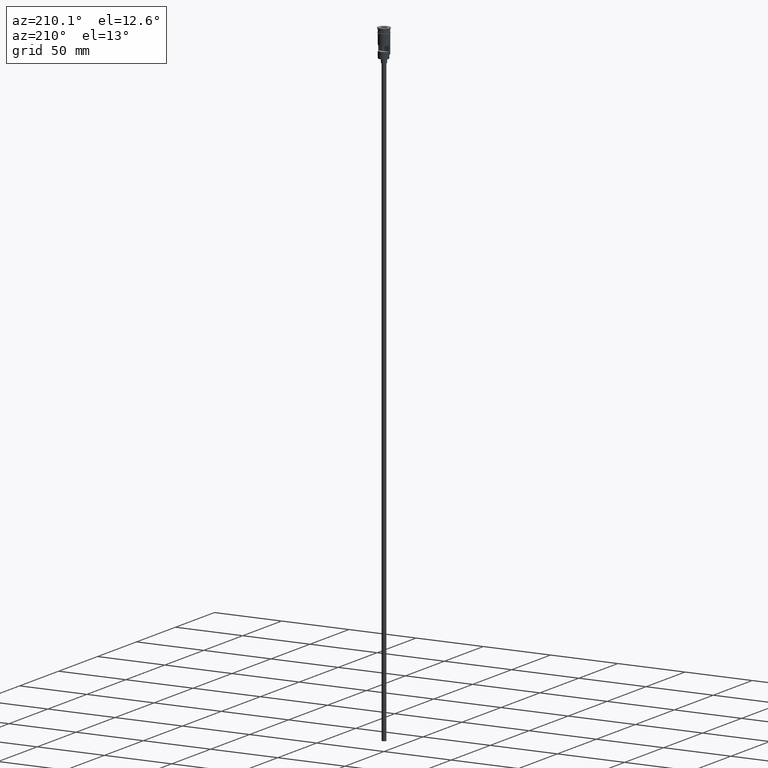
[diagram: clean part render]
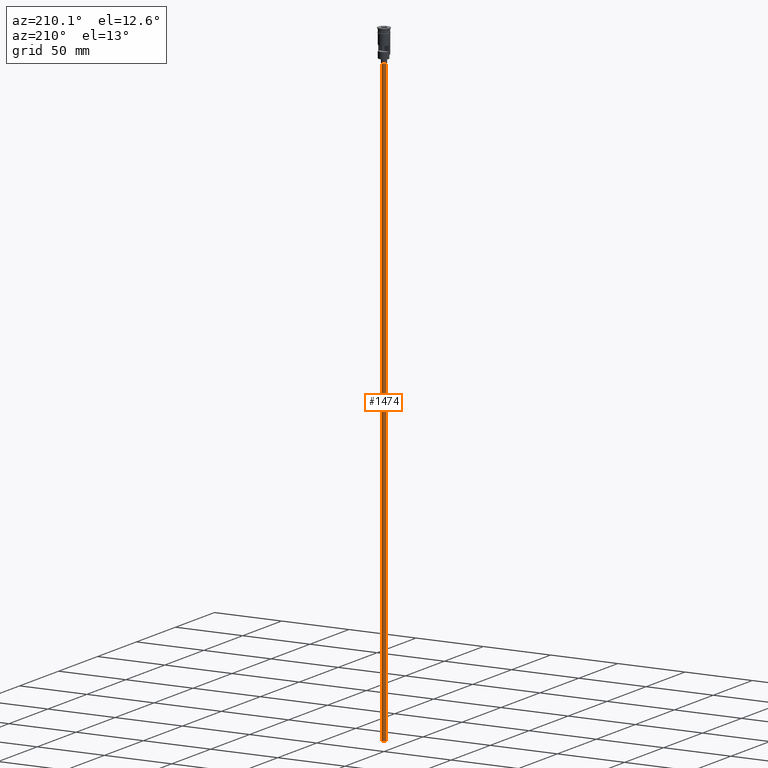
[diagram: same view with one face highlighted and labeled with its STEP entity id]
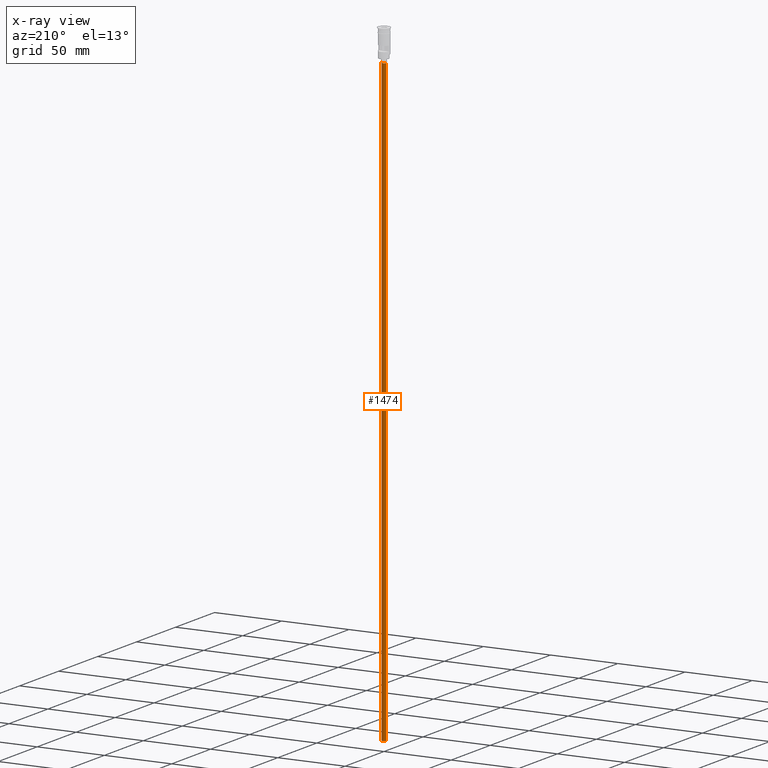
[diagram: x-ray of the same camera — body ghosted, the highlighted face saturated]
A machine part, auxiliary view. The second image highlights one B-rep face of the part: STEP entity #1474.
The next image is the same camera in x-ray: the body ghosted, the highlighted face saturated — about 0% of this face is hidden behind the body in this view.
In plain terms, the highlighted cylindrical surface (edge-blend (fillet) strip) has radius 1.5 mm, axis along (-0, -0, 1).
Its self-contained STEP definition (entity closure, byte-faithful):
#62 = EDGE_CURVE ( 'NONE', #114, #1511, #1437, .T. ) ;
#71 = VECTOR ( 'NONE', #627, 1000.000000000000000 ) ;
#114 = VERTEX_POINT ( 'NONE', #1165 ) ;
#130 = CARTESIAN_POINT ( 'NONE',  ( -1.500000000000000222, 1.836970198721030181E-16, -470.5000000000000568 ) ) ;
#135 = DIRECTION ( 'NONE',  ( -1.000000000000000000, 0.000000000000000000, 0.000000000000000000 ) ) ;
#212 = EDGE_CURVE ( 'NONE', #673, #392, #476, .T. ) ;
#227 = DIRECTION ( 'NONE',  ( 1.000000000000000000, 0.000000000000000000, 0.000000000000000000 ) ) ;
#368 = EDGE_CURVE ( 'NONE', #673, #114, #785, .T. ) ;
#392 = VERTEX_POINT ( 'NONE', #1518 ) ;
#476 = CIRCLE ( 'NONE', #1515, 1.500000000000000222 ) ;
#494 = CARTESIAN_POINT ( 'NONE',  ( 0.000000000000000000, 0.000000000000000000, -470.5000000000000568 ) ) ;
#596 = CYLINDRICAL_SURFACE ( 'NONE', #1491, 1.500000000000000222 ) ;
#618 = CARTESIAN_POINT ( 'NONE',  ( 0.000000000000000000, 0.000000000000000000, -23.49999999999999645 ) ) ;
#621 = CARTESIAN_POINT ( 'NONE',  ( 1.500000000000000222, 0.000000000000000000, -23.49999999999999645 ) ) ;
#627 = DIRECTION ( 'NONE',  ( -0.000000000000000000, -0.000000000000000000, 1.000000000000000000 ) ) ;
#673 = VERTEX_POINT ( 'NONE', #1322 ) ;
#729 = FACE_OUTER_BOUND ( 'NONE', #1145, .T. ) ;
#785 = LINE ( 'NONE', #130, #71 ) ;
#831 = DIRECTION ( 'NONE',  ( -0.000000000000000000, -0.000000000000000000, 1.000000000000000000 ) ) ;
#835 = ORIENTED_EDGE ( 'NONE', *, *, #368, .T. ) ;
#843 = LINE ( 'NONE', #1211, #889 ) ;
#866 = AXIS2_PLACEMENT_3D ( 'NONE', #618, #1604, #135 ) ;
#889 = VECTOR ( 'NONE', #1469, 1000.000000000000000 ) ;
#1008 = ORIENTED_EDGE ( 'NONE', *, *, #1537, .F. ) ;
#1102 = CARTESIAN_POINT ( 'NONE',  ( 0.000000000000000000, 0.000000000000000000, -470.5000000000000568 ) ) ;
#1145 = EDGE_LOOP ( 'NONE', ( #1342, #835, #1431, #1008 ) ) ;
#1165 = CARTESIAN_POINT ( 'NONE',  ( -1.500000000000000222, 1.836970198721030181E-16, -23.49999999999999645 ) ) ;
#1211 = CARTESIAN_POINT ( 'NONE',  ( 1.500000000000000222, 0.000000000000000000, -470.5000000000000568 ) ) ;
#1322 = CARTESIAN_POINT ( 'NONE',  ( -1.500000000000000222, 1.836970198721030181E-16, -470.5000000000000568 ) ) ;
#1342 = ORIENTED_EDGE ( 'NONE', *, *, #212, .F. ) ;
#1431 = ORIENTED_EDGE ( 'NONE', *, *, #62, .T. ) ;
#1437 = CIRCLE ( 'NONE', #866, 1.500000000000000222 ) ;
#1469 = DIRECTION ( 'NONE',  ( -0.000000000000000000, -0.000000000000000000, 1.000000000000000000 ) ) ;
#1474 = ADVANCED_FACE ( 'NONE', ( #729 ), #596, .T. ) ;
#1477 = DIRECTION ( 'NONE',  ( -1.000000000000000000, 0.000000000000000000, 0.000000000000000000 ) ) ;
#1491 = AXIS2_PLACEMENT_3D ( 'NONE', #494, #831, #227 ) ;
#1511 = VERTEX_POINT ( 'NONE', #621 ) ;
#1515 = AXIS2_PLACEMENT_3D ( 'NONE', #1102, #1589, #1477 ) ;
#1518 = CARTESIAN_POINT ( 'NONE',  ( 1.500000000000000222, 0.000000000000000000, -470.5000000000000568 ) ) ;
#1537 = EDGE_CURVE ( 'NONE', #392, #1511, #843, .T. ) ;
#1589 = DIRECTION ( 'NONE',  ( 0.000000000000000000, 0.000000000000000000, -1.000000000000000000 ) ) ;
#1604 = DIRECTION ( 'NONE',  ( 0.000000000000000000, 0.000000000000000000, -1.000000000000000000 ) ) ;